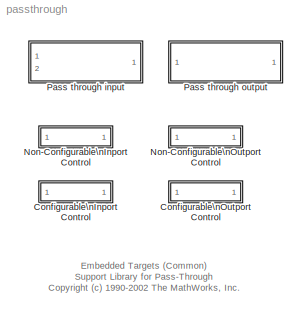
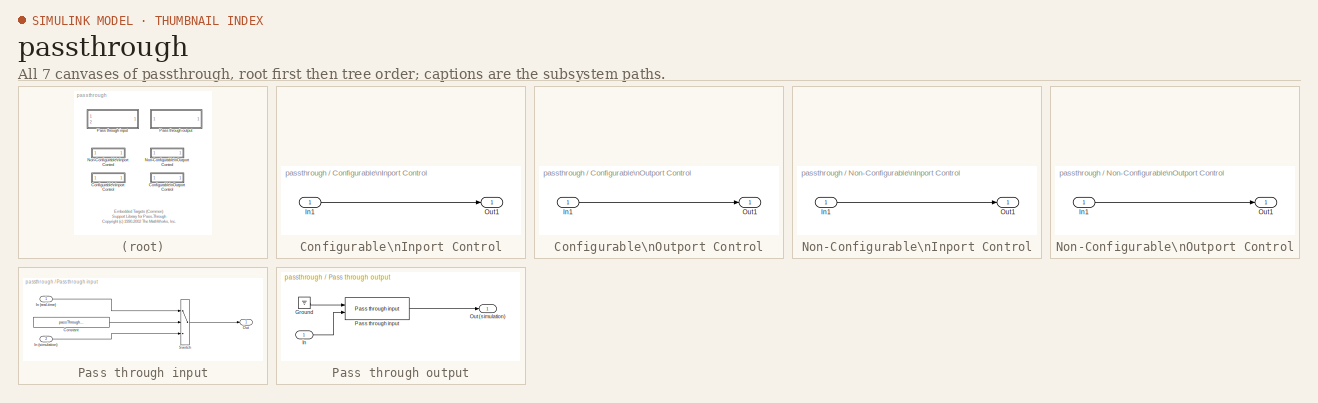
[diagram: thumbnail index - all 7 canvases of the model, root first then tree order]
MODEL passthrough
KIND library
BLOCK [SubSystem] Configurable\nInport Control
  MaskCallbackString = ||||
  MaskDescription = Add this block to a signal immediately after an Inport to specify that this is a configurable Inport.    The associated Inport can be selectively controlled by providing the Port Name parameter to the Simulink port control utility.   The Port Number parameter will provide the desired Port Number of the Inport when all Inports are enabled.
  MaskDisplay = disp(dispstr);
  MaskEnableString = on,on,on,on,on
  MaskIconFrame = on
  MaskIconOpaque = on
  MaskIconRotate = none
  MaskIconUnits = autoscale
  MaskInitialization = switch (isEnabled)\n	case 0 % disabled\n		state = 'Disabled';\n	case 1 % enabled\n		state = 'Enabled';\nend;\ndispstr = [num2str(portNum) ' : ' state];
  MaskPromptString = Port number (when ALL ports are enabled):|Port name:|Enabled?:|Configurable?:|Inport?:
  MaskSelfModifiable = on
  MaskStyleString = edit,edit,edit,edit,edit
  MaskTabNameString = ,,,,
  MaskToolTipString = on,on,on,on,on
  MaskTunableValueString = off,off,off,off,off
  MaskType = Configurable Inport Control
  MaskValueString = 1|MyConfigurableInport|1|1|1
  MaskVarAliasString = ,,,,
  MaskVariables = portNum=@1;portName=&2;isEnabled=@3;isConfigurable=@4;isInport=@5;
  MaskVisibilityString = on,on,off,off,off
  MinAlgLoopOccurrences = off
  Ports = [1, 1]
  PropExecContextAcrossSSBoundary = on
  RTWSystemCode = Auto
  TreatAsAtomicUnit = off
BLOCK [Inport] Configurable\nInport Control/In1
  IconDisplay = Port number
  LatchInput = off
  Port = 1
BLOCK [Outport] Configurable\nInport Control/Out1
  IconDisplay = Port number
BLOCK [SubSystem] Configurable\nOutport Control
  MaskCallbackString = ||||
  MaskDescription = Add this block to a signal immediately before an Outport to specify that this is a configurable Outport.    The associated Outport can be selectively controlled by providing the Port Name parameter to the Simulink port control utility.   The Port Number parameter will provide the desired Port Number of the Outport when all Outports are enabled.
  MaskDisplay = disp(dispstr);
  MaskEnableString = on,on,on,on,on
  MaskIconFrame = on
  MaskIconOpaque = on
  MaskIconRotate = none
  MaskIconUnits = autoscale
  MaskInitialization = switch (isEnabled)\n	case 0 % disabled\n		state = 'Disabled';\n	case 1 % enabled\n		state = 'Enabled';\nend;\ndispstr = [state ' : ' num2str(portNum)];
  MaskPromptString = Port number (when ALL ports are enabled):|Port name:|Enabled?:|Configurable?:|Inport?:
  MaskSelfModifiable = on
  MaskStyleString = edit,edit,edit,edit,edit
  MaskTabNameString = ,,,,
  MaskToolTipString = on,on,on,on,on
  MaskTunableValueString = off,off,off,off,off
  MaskType = Configurable Outport Control
  MaskValueString = 1|MyConfigurableOutport|1|1|0
  MaskVarAliasString = ,,,,
  MaskVariables = portNum=@1;portName=&2;isEnabled=@3;isConfigurable=@4;isInport=@5;
  MaskVisibilityString = on,on,off,off,off
  MinAlgLoopOccurrences = off
  Ports = [1, 1]
  PropExecContextAcrossSSBoundary = on
  RTWSystemCode = Auto
  TreatAsAtomicUnit = off
BLOCK [Inport] Configurable\nOutport Control/In1
  IconDisplay = Port number
  LatchInput = off
  Port = 1
BLOCK [Outport] Configurable\nOutport Control/Out1
  IconDisplay = Port number
BLOCK [SubSystem] Non-Configurable\nInport Control
  MaskCallbackString = |||
  MaskDescription = Add this block to a signal immediately after an Inport to specify that this is a non-configurable Inport.    The associated Inport will always be enabled.   The Port Number parameter will provide the desired Port Number of the Inport when all Inports are enabled.
  MaskDisplay = disp(['Inport ' num2str(portNum)]);
  MaskEnableString = on,on,on,on
  MaskIconFrame = on
  MaskIconOpaque = on
  MaskIconRotate = none
  MaskIconUnits = autoscale
  MaskPromptString = Port number (when ALL ports are enabled): |Enabled?:|Configurable?:|Inport?:
  MaskStyleString = edit,edit,edit,edit
  MaskTabNameString = ,,,
  MaskToolTipString = on,on,on,on
  MaskTunableValueString = off,off,off,off
  MaskType = Non-Configurable Inport Control
  MaskValueString = 1|1|0|1
  MaskVarAliasString = ,,,
  MaskVariables = portNum=@1;isEnabled=@2;isConfigurable=@3;isInport=@4;
  MaskVisibilityString = on,off,off,off
  MinAlgLoopOccurrences = off
  Ports = [1, 1]
  PropExecContextAcrossSSBoundary = on
  RTWSystemCode = Auto
  TreatAsAtomicUnit = off
BLOCK [Inport] Non-Configurable\nInport Control/In1
  IconDisplay = Port number
  LatchInput = off
  Port = 1
BLOCK [Outport] Non-Configurable\nInport Control/Out1
  IconDisplay = Port number
BLOCK [SubSystem] Non-Configurable\nOutport Control
  MaskCallbackString = |||
  MaskDescription = Add this block to a signal immediately before an Outport to specify that this is a non-configurable Outport.      The associated Outport will always be enabled.   The Port Number parameter will provide the desired Port Number of the Outport when all Outports are enabled.
  MaskDisplay = disp(['Outport ' num2str(portNum)]);
  MaskEnableString = on,on,on,on
  MaskIconFrame = on
  MaskIconOpaque = on
  MaskIconRotate = none
  MaskIconUnits = autoscale
  MaskPromptString = Port number (when ALL ports are enabled):|Enabled:|Configurable?:|Inport?:
  MaskStyleString = edit,edit,edit,edit
  MaskTabNameString = ,,,
  MaskToolTipString = on,on,on,on
  MaskTunableValueString = off,off,off,off
  MaskType = Non-Configurable Outport Control
  MaskValueString = 1|1|0|0
  MaskVarAliasString = ,,,
  MaskVariables = portNum=@1;isEnabled=@2;isConfigurable=@3;isInport=@4;
  MaskVisibilityString = on,off,off,off
  MinAlgLoopOccurrences = off
  Ports = [1, 1]
  PropExecContextAcrossSSBoundary = on
  RTWSystemCode = Auto
  TreatAsAtomicUnit = off
BLOCK [Inport] Non-Configurable\nOutport Control/In1
  IconDisplay = Port number
  LatchInput = off
  Port = 1
BLOCK [Outport] Non-Configurable\nOutport Control/Out1
  IconDisplay = Port number
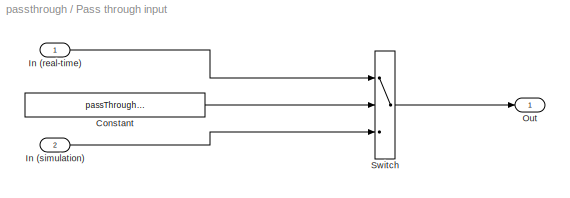
BLOCK [SubSystem] Pass through input
  MaskDescription = Pass through input 1 during real-time code generation.\nPass through input 2 during simulation and when generating code for simulation (e.g., Accelerator, S-Function target, Processor-in-the-loop).\n\n
  MaskIconFrame = on
  MaskIconOpaque = on
  MaskIconRotate = none
  MaskIconUnits = autoscale
  MaskType = Simulation pass through (input)
  MinAlgLoopOccurrences = off
  Ports = [2, 1]
  PropExecContextAcrossSSBoundary = on
  RTWSystemCode = Auto
  TreatAsAtomicUnit = off
BLOCK [Constant] Pass through input/Constant
  OutDataTypeMode = boolean
  Value = passThroughSelector(bdroot)
BLOCK [Inport] Pass through input/In (real-time)
  IconDisplay = Port number
  LatchInput = off
  Port = 1
BLOCK [Inport] Pass through input/In (simulation)
  IconDisplay = Port number
  LatchInput = off
  Port = 2
BLOCK [Outport] Pass through input/Out
  IconDisplay = Port number
BLOCK [Switch] Pass through input/Switch
  Criteria = u2 ~= 0
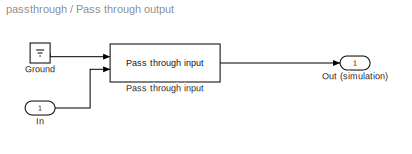
BLOCK [SubSystem] Pass through output
  MaskDescription = Pass through input during simulation and when generating code for simulation (e.g., Accelerator, S-Function target, Processor-in-the-loop). When generating real-time code the output of this block is not generated.\n\nThe port width must not be -1
  MaskEnableString = on
  MaskIconFrame = on
  MaskIconOpaque = on
  MaskIconRotate = none
  MaskIconUnits = autoscale
  MaskInitialization = % remove \\n's from driver block\ndriverBlock = regexprep(driverBlock, sprintf('\\n'), ' ');\n% get the closest target subsystem to the driver block\ntargetSubsystem = RTWConfigurationCB('get_target_subsystem', driverBlock);\n% check the pass through output\npassThroughOutputChecker(gcb, driverBlock, targetSubsystem, 0);
  MaskPromptString = Driver block reference:
  MaskStyleString = edit
  MaskToolTipString = on
  MaskTunableValueString = off
  MaskType = Simulation pass through (output)
  MaskValueString = gcs
  MaskVariables = driverBlock=@1;
  MaskVisibilityString = on
  MinAlgLoopOccurrences = off
  Ports = [1, 1]
  PropExecContextAcrossSSBoundary = on
  RTWSystemCode = Auto
  TreatAsAtomicUnit = off
BLOCK [Ground] Pass through output/Ground
BLOCK [Inport] Pass through output/In
  IconDisplay = Port number
  LatchInput = off
  Port = 1
BLOCK [Outport] Pass through output/Out (simulation)
  IconDisplay = Port number
BLOCK [Reference] Pass through output/Pass through input  REF=passthrough/Pass through input  (lib defined in mdl_1854c53aa8f3, slx_03af21221887, +1 more)
  Ports = [2, 1]
  SourceBlock = passthrough/Pass through input
  SourceType = Simulation pass through (input)
ANNOTATION (root): Embedded Targets (Common)\nSupport Library for Pass-Through\nCopyright (c) 1990-2002 The MathWorks, Inc.
LINE Configurable\nInport Control/In1:1 -> Configurable\nInport Control/Out1:1
LINE Configurable\nOutport Control/In1:1 -> Configurable\nOutport Control/Out1:1
LINE Non-Configurable\nInport Control/In1:1 -> Non-Configurable\nInport Control/Out1:1
LINE Non-Configurable\nOutport Control/In1:1 -> Non-Configurable\nOutport Control/Out1:1
LINE Pass through input/Constant:1 -> Pass through input/Switch:2
LINE Pass through input/In (real-time):1 -> Pass through input/Switch:1
LINE Pass through input/In (simulation):1 -> Pass through input/Switch:3
LINE Pass through input/Switch:1 -> Pass through input/Out:1
LINE Pass through output/Ground:1 -> Pass through output/Pass through input:1
LINE Pass through output/In:1 -> Pass through output/Pass through input:2
LINE Pass through output/Pass through input:1 -> Pass through output/Out (simulation):1
